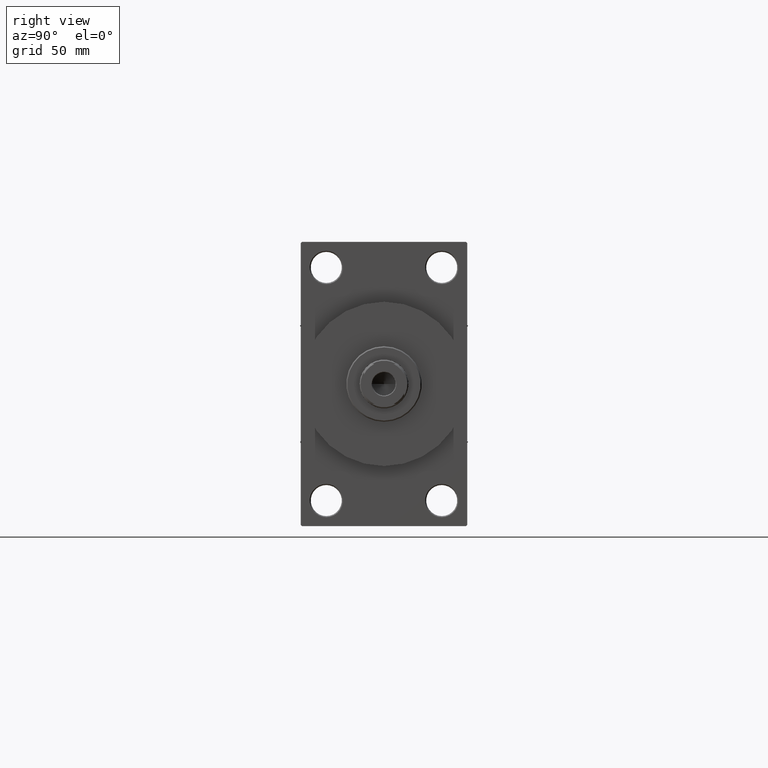
[diagram: clean part render]
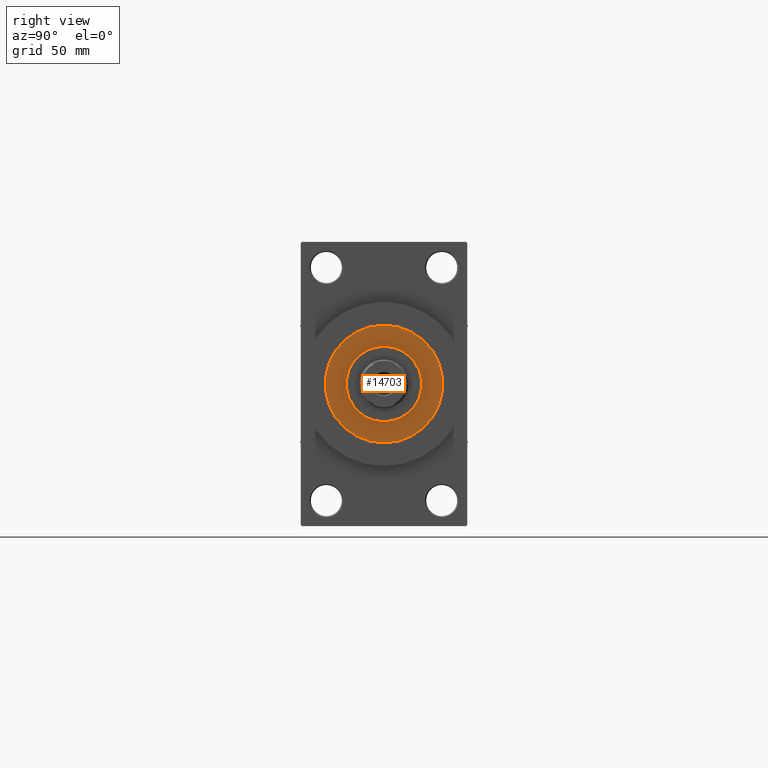
[diagram: same view with one face highlighted and labeled with its STEP entity id]
A machine part, right view. The second image highlights one B-rep face of the part: STEP entity #14703.
In plain terms, the highlighted planar face has unit normal (1, -0, -0).
Its self-contained STEP definition (entity closure, byte-faithful):
#2898 = AXIS2_PLACEMENT_3D ( 'NONE', #34993, #45279, #38570 ) ;
#4565 = DIRECTION ( 'NONE',  ( 1.000000000000000000, 0.000000000000000000, 0.000000000000000000 ) ) ;
#4796 = DIRECTION ( 'NONE',  ( 0.000000000000000000, 0.000000000000000000, 1.000000000000000000 ) ) ;
#5079 = DIRECTION ( 'NONE',  ( 1.000000000000000000, 0.000000000000000000, 0.000000000000000000 ) ) ;
#6707 = EDGE_LOOP ( 'NONE', ( #15303, #22778 ) ) ;
#8706 = DIRECTION ( 'NONE',  ( 0.000000000000000000, 0.000000000000000000, 1.000000000000000000 ) ) ;
#14690 = CARTESIAN_POINT ( 'NONE',  ( 0.000000000000000000, 0.000000000000000000, 43.25999999999999801 ) ) ;
#14703 = ADVANCED_FACE ( 'NONE', ( #30199, #19683 ), #37123, .T. ) ;
#15303 = ORIENTED_EDGE ( 'NONE', *, *, #18967, .T. ) ;
#15845 = AXIS2_PLACEMENT_3D ( 'NONE', #14690, #47143, #29235 ) ;
#16092 = VERTEX_POINT ( 'NONE', #16291 ) ;
#16280 = EDGE_CURVE ( 'NONE', #22247, #40040, #27970, .T. ) ;
#16291 = CARTESIAN_POINT ( 'NONE',  ( -17.00000000000000000, 0.000000000000000000, 43.25999999999999801 ) ) ;
#17367 = CIRCLE ( 'NONE', #15845, 17.00000000000000000 ) ;
#18618 = EDGE_LOOP ( 'NONE', ( #28101, #27810 ) ) ;
#18967 = EDGE_CURVE ( 'NONE', #40040, #22247, #41770, .T. ) ;
#19683 = FACE_OUTER_BOUND ( 'NONE', #6707, .T. ) ;
#22247 = VERTEX_POINT ( 'NONE', #35454 ) ;
#22778 = ORIENTED_EDGE ( 'NONE', *, *, #16280, .T. ) ;
#25537 = EDGE_CURVE ( 'NONE', #16092, #37464, #17367, .T. ) ;
#26455 = AXIS2_PLACEMENT_3D ( 'NONE', #44180, #4796, #4565 ) ;
#26659 = CIRCLE ( 'NONE', #37329, 17.00000000000000000 ) ;
#27494 = CARTESIAN_POINT ( 'NONE',  ( 0.000000000000000000, 0.000000000000000000, 43.25999999999999801 ) ) ;
#27810 = ORIENTED_EDGE ( 'NONE', *, *, #34146, .F. ) ;
#27970 = CIRCLE ( 'NONE', #26455, 26.50000000000000355 ) ;
#28101 = ORIENTED_EDGE ( 'NONE', *, *, #25537, .F. ) ;
#29235 = DIRECTION ( 'NONE',  ( 1.000000000000000000, 0.000000000000000000, 0.000000000000000000 ) ) ;
#29457 = AXIS2_PLACEMENT_3D ( 'NONE', #40696, #8706, #34234 ) ;
#30199 = FACE_BOUND ( 'NONE', #18618, .T. ) ;
#34146 = EDGE_CURVE ( 'NONE', #37464, #16092, #26659, .T. ) ;
#34234 = DIRECTION ( 'NONE',  ( 1.000000000000000000, 0.000000000000000000, -0.000000000000000000 ) ) ;
#34900 = CARTESIAN_POINT ( 'NONE',  ( -26.50000000000000355, 0.000000000000000000, 43.25999999999999801 ) ) ;
#34993 = CARTESIAN_POINT ( 'NONE',  ( 0.000000000000000000, 0.000000000000000000, 43.25999999999999801 ) ) ;
#35454 = CARTESIAN_POINT ( 'NONE',  ( 26.50000000000000355, 3.245314017740486554E-15, 43.25999999999999801 ) ) ;
#37123 = PLANE ( 'NONE',  #29457 ) ;
#37329 = AXIS2_PLACEMENT_3D ( 'NONE', #27494, #45868, #5079 ) ;
#37464 = VERTEX_POINT ( 'NONE', #39974 ) ;
#38570 = DIRECTION ( 'NONE',  ( 1.000000000000000000, 0.000000000000000000, 0.000000000000000000 ) ) ;
#39974 = CARTESIAN_POINT ( 'NONE',  ( 17.00000000000000000, 2.081899558550500280E-15, 43.25999999999999801 ) ) ;
#40040 = VERTEX_POINT ( 'NONE', #34900 ) ;
#40696 = CARTESIAN_POINT ( 'NONE',  ( 0.000000000000000000, 0.000000000000000000, 43.25999999999999801 ) ) ;
#41770 = CIRCLE ( 'NONE', #2898, 26.50000000000000355 ) ;
#44180 = CARTESIAN_POINT ( 'NONE',  ( 0.000000000000000000, 0.000000000000000000, 43.25999999999999801 ) ) ;
#45279 = DIRECTION ( 'NONE',  ( 0.000000000000000000, 0.000000000000000000, 1.000000000000000000 ) ) ;
#45868 = DIRECTION ( 'NONE',  ( 0.000000000000000000, 0.000000000000000000, 1.000000000000000000 ) ) ;
#47143 = DIRECTION ( 'NONE',  ( 0.000000000000000000, 0.000000000000000000, 1.000000000000000000 ) ) ;